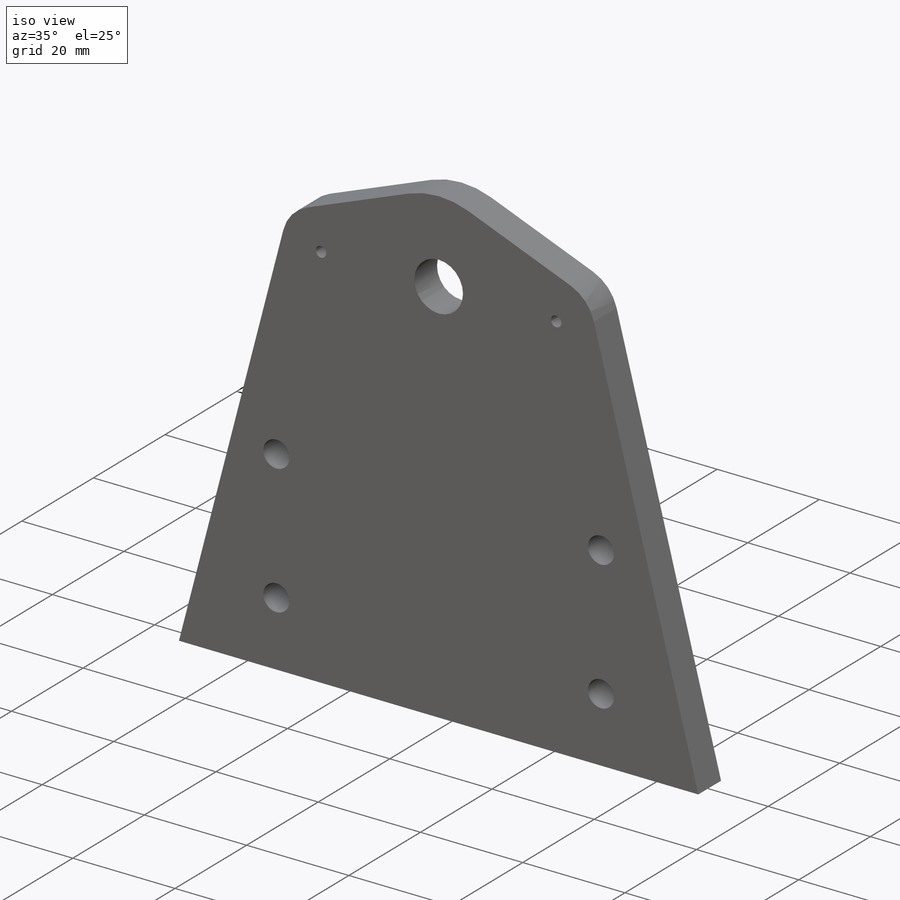
[diagram: iso view]
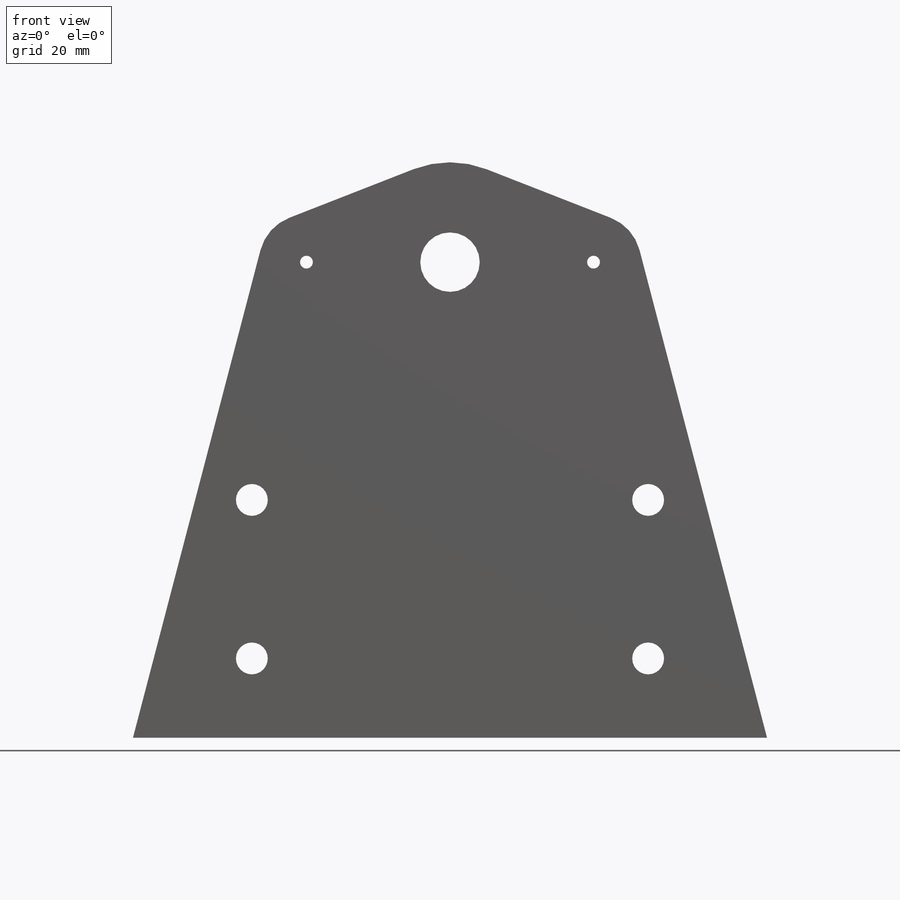
[diagram: front view]
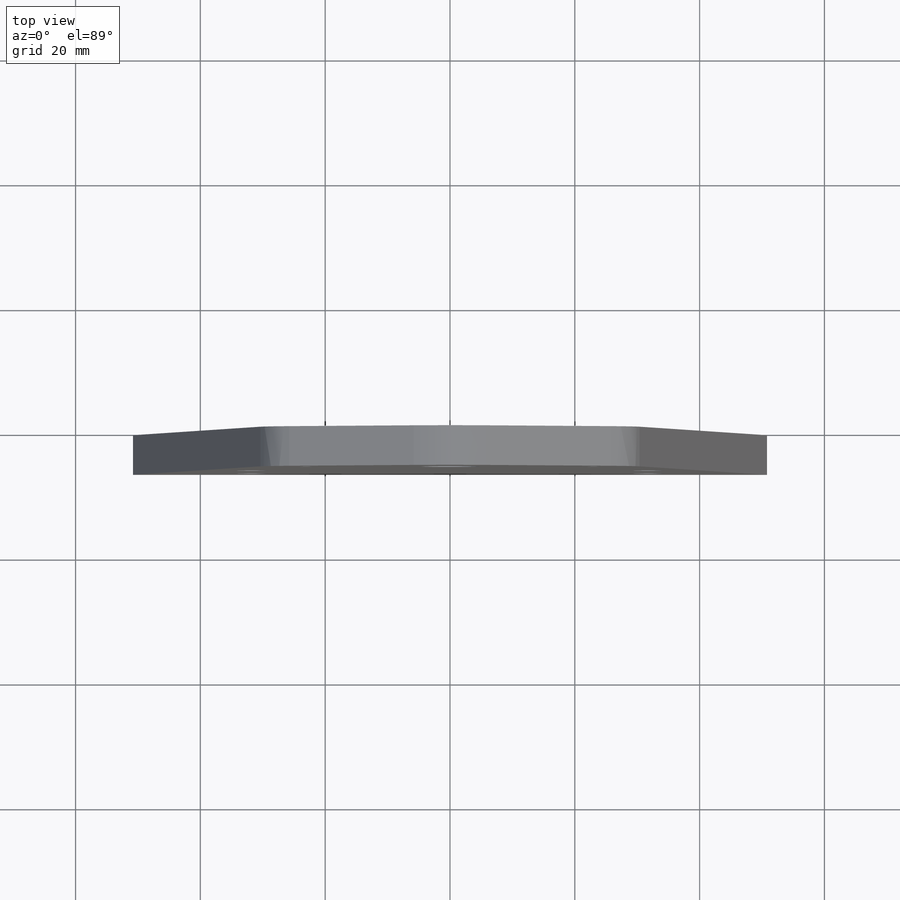
[diagram: top view]
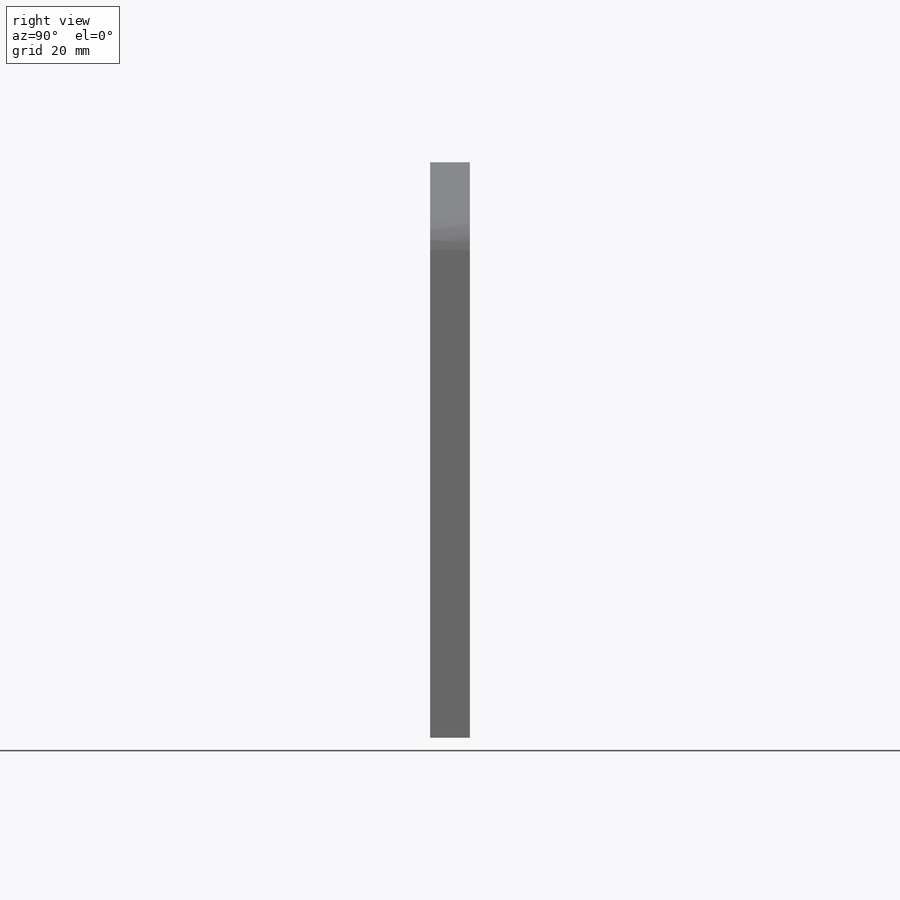
[diagram: right view]
SOLIDWORKS PART (.sldprt)
format: sldprt  version: not decoded by parser v0  size: 220,672 bytes
history: native  units: mm
features: sketch x5, hole x2, material x1, extrude x1 (+13 scaffold rows collapsed)
feature tree (22):
  scaffold x13  (default folders/planes/origin — collapsed)
  material  "Material <not specified>"
  sketch  "Sketch1"  dims[c1.D2=9.525mm c1.D4=16.0mm c1.D10=3.175mm c1.D12=7.62mm c1.D1=46.0mm c1.D3=23.0mm c2.D4=11.5mm c2.D5=25.4mm c2.D6=25.4mm c2.D7=76.2mm c2.D8=63.5mm c2.D9=12.7mm c2.D11=101.6mm c2.D12=~70.658431mm]
  extrude  "Boss-Extrude1"  Depth=6.35mm
  hole  "M2.5x0.45 Tapped Hole1"  Diameter=2.05mm Depth=6.35mm
  sketch  "Sketch3"
  sketch  "Sketch2"  dims[hole-wizard template sketch: 59 standard entries collapsed; hole parameters kept: c18.Thread Major Dia.=2.05mm c18.Thru Tap Drill Depth=6.35mm]
  hole  "1/4-20 Tapped Hole1"  Diameter=5.1054mm Depth=6.35mm
  sketch  "Sketch5"
  sketch  "Sketch4"  dims[hole-wizard template sketch: 60 standard entries collapsed; hole parameters kept: c18.Thru Tap Drill Depth=6.35mm]
decode coverage: 6 of 8 modeling features carry decoded parameters
note: ~ marks probable driven/reference dimensions
note: suppression state not decoded; provenance and decode notes live in map.json
